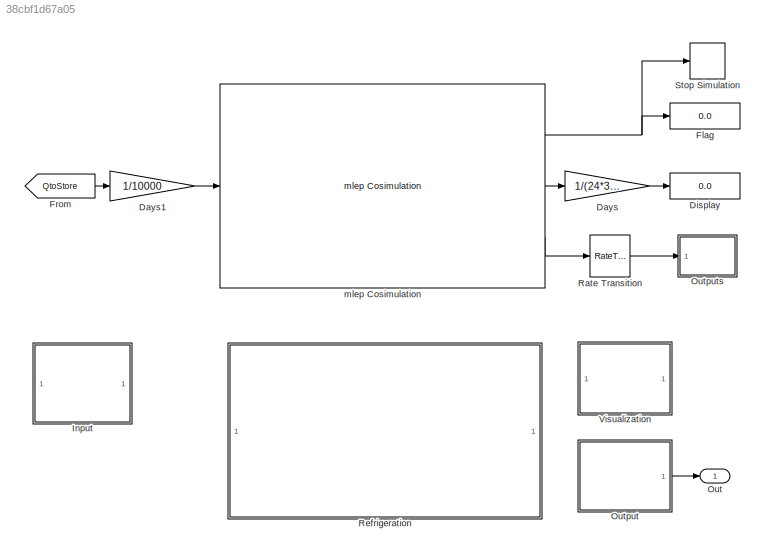
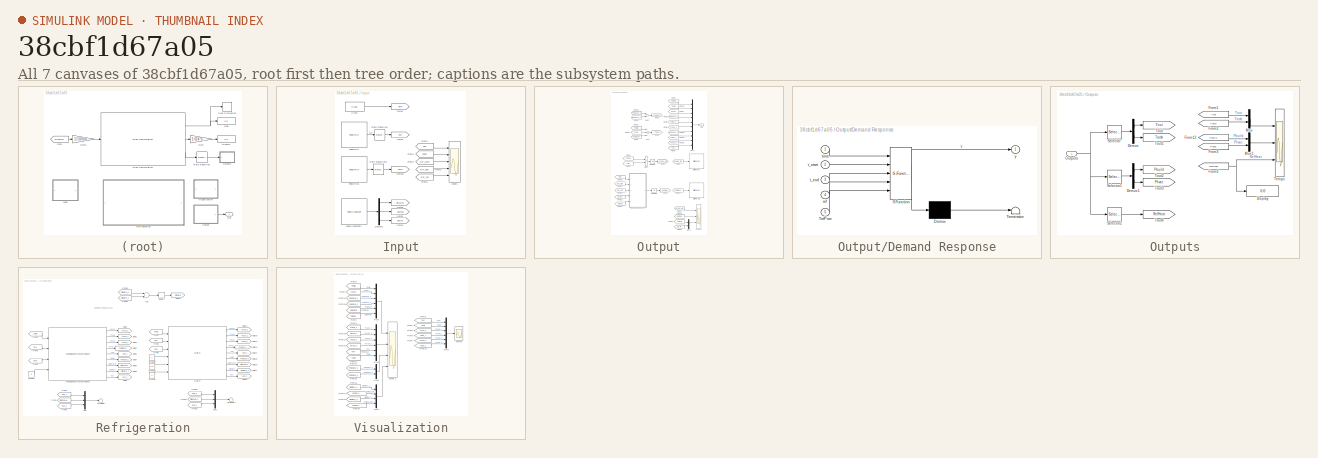
[diagram: thumbnail index - all 7 canvases of the model, root first then tree order]
MODEL slx_38cbf1d67a05
KIND model
CONFIG AbsTol = auto
CONFIG FixedStep = 1
CONFIG MaxStep = auto
CONFIG MinStep = auto
CONFIG RelTol = 1e-3
CONFIG SampleTimeConstraint = Unconstrained
CONFIG Solver = ode3
CONFIG SolverMode = SingleTasking
CONFIG SolverName = ode3
CONFIG StartTime = 0.0
CONFIG StopTime = 24*3600
BLOCK [Gain] Days
  Gain = 1/(24*3600)
  OutDataTypeStr = Inherit: Inherit via internal rule
  ParamDataTypeStr = Inherit: Inherit via internal rule
  SaturateOnIntegerOverflow = off
BLOCK [Gain] Days1
  Gain = 1/10000
  OutDataTypeStr = Inherit: Inherit via internal rule
  ParamDataTypeStr = Inherit: Inherit via internal rule
  SaturateOnIntegerOverflow = off
BLOCK [Display] Display
  Decimation = 1
  Ports = [1]
BLOCK [Display] Flag
  Decimation = 1
  Ports = [1]
BLOCK [From] From
  GotoTag = QtoStore
  TagVisibility = global
BLOCK [SubSystem] Input
  Ports = []
  RequestExecContextInheritance = off
BLOCK [Clock] Input/Clock
  DisplayTime = on
BLOCK [Demux] Input/Demux1
  DisplayOption = bar
  Outputs = 3
  Ports = [1, 3]
BLOCK [Reference] Input/Feed Constant1  REF=refrigeration/Utilities/Feed Constant  (lib defined in slx_e5051c2510bc)
  Ports = [0, 1]
  SourceBlock = refrigeration/Utilities/Feed Constant
  SourceType = Read Constant from File
  filename = 'constant.txt'
  numinput = 3
  timestep = 300
BLOCK [Reference] Input/Feed File  REF=refrigeration/Utilities/Feed File  (lib defined in slx_e5051c2510bc)
  Ports = [0, 1]
  SourceBlock = refrigeration/Utilities/Feed File
  SourceType = Read Input File
  feedstep = 3600
  filename = 'input.txt'
  timestep = 300
BLOCK [Reference] Input/Feed File1  REF=refrigeration/Utilities/Feed File  (lib defined in slx_e5051c2510bc)
  Ports = [0, 1]
  SourceBlock = refrigeration/Utilities/Feed File
  SourceType = Read Input File
  feedstep = 3600
  filename = 'input.txt'
  timestep = 300
BLOCK [From] Input/From1
  GotoTag = Tariff
  TagVisibility = global
BLOCK [From] Input/From2
  GotoTag = DR_end
  TagVisibility = global
BLOCK [From] Input/From3
  GotoTag = Tevl
  TagVisibility = global
BLOCK [From] Input/From4
  GotoTag = DR_start
  TagVisibility = global
BLOCK [From] Input/From6
  GotoTag = DR_ref
  TagVisibility = global
BLOCK [Goto] Input/Goto1
  GotoTag = Time
  TagVisibility = global
BLOCK [Goto] Input/Goto10
  GotoTag = Tariff
  TagVisibility = global
BLOCK [Goto] Input/Goto2
  GotoTag = DR_end
  TagVisibility = global
BLOCK [Goto] Input/Goto3
  GotoTag = DR_start
  TagVisibility = global
BLOCK [Goto] Input/Goto4
  GotoTag = DR_ref
  TagVisibility = global
BLOCK [Goto] Input/Goto5
  GotoTag = Tevl
  TagVisibility = global
BLOCK [Scope] Input/Inputs
  DataFormat = StructureWithTime
  Floating = off
  LimitDataPoints = off
  NumInputPorts = 5
  Ports = [5]
  SampleInput = on
  SampleTime = 0
  SaveName = ScopeData3
  ShowLegends = on
  TimeRange = 90000
  YMax = 25~0.1~16~16~400001
  YMin = 0~0.02~14~14~399999
BLOCK [RateTransition] Input/Rate Transition
BLOCK [RateTransition] Input/Rate Transition1
BLOCK [Outport] Out
  IconDisplay = Port number
  InitialOutput = 0
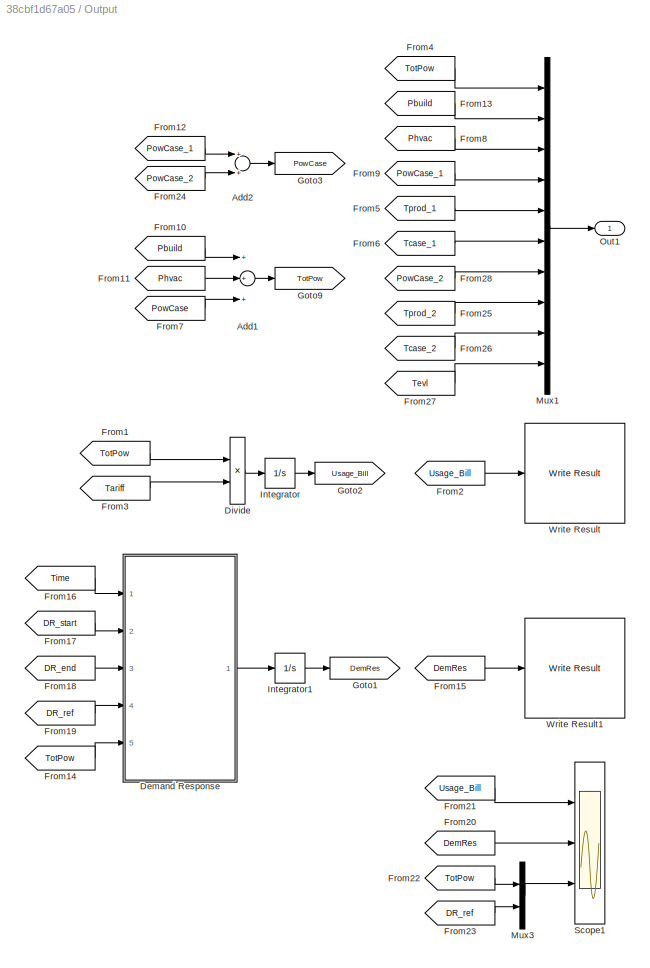
BLOCK [SubSystem] Output
  Ports = [0, 1]
  RequestExecContextInheritance = off
BLOCK [Sum] Output/Add1
  InputSameDT = off
  Inputs = +++
  OutDataTypeStr = Inherit: Inherit via internal rule
  Ports = [3, 1]
  SaturateOnIntegerOverflow = off
BLOCK [Sum] Output/Add2
  InputSameDT = off
  OutDataTypeStr = Inherit: Inherit via internal rule
  Ports = [2, 1]
  SaturateOnIntegerOverflow = off
BLOCK [SubSystem] Output/Demand Response
  ErrorFcn = Stateflow.Translate.translate
  PermitHierarchicalResolution = ExplicitOnly
  Ports = [5, 1]
  RequestExecContextInheritance = off
  SFBlockType = MATLAB Function
  TreatAsAtomicUnit = on
BLOCK [Demux] Output/Demand Response/ Demux 
  Outputs = 1
  Ports = [1, 1]
BLOCK [S-Function] Output/Demand Response/ SFunction 
  EnableBusSupport = on
  FunctionName = sf_sfun
  PortCounts = [5 2]
  Ports = [5, 2]
  Tag = Stateflow S-Function retail_store 1
BLOCK [Terminator] Output/Demand Response/ Terminator 
BLOCK [Inport] Output/Demand Response/TotPow
  IconDisplay = Port number
  Port = 5
BLOCK [Inport] Output/Demand Response/ref
  IconDisplay = Port number
  Port = 4
BLOCK [Inport] Output/Demand Response/t_end
  IconDisplay = Port number
  Port = 3
BLOCK [Inport] Output/Demand Response/t_start
  IconDisplay = Port number
  Port = 2
BLOCK [Inport] Output/Demand Response/time
  IconDisplay = Port number
BLOCK [Outport] Output/Demand Response/y
  IconDisplay = Port number
BLOCK [Product] Output/Divide
  InputSameDT = off
  Inputs = **
  OutDataTypeStr = Inherit: Inherit via internal rule
  Ports = [2, 1]
  RndMeth = Floor
  SaturateOnIntegerOverflow = off
BLOCK [From] Output/From1
  GotoTag = TotPow
  TagVisibility = global
BLOCK [From] Output/From10
  GotoTag = Pbuild
  TagVisibility = global
BLOCK [From] Output/From11
  GotoTag = Phvac
  TagVisibility = global
BLOCK [From] Output/From12
  GotoTag = PowCase_1
  TagVisibility = global
BLOCK [From] Output/From13
  GotoTag = Pbuild
  TagVisibility = global
BLOCK [From] Output/From14
  GotoTag = TotPow
  TagVisibility = global
BLOCK [From] Output/From15
  GotoTag = DemRes
  TagVisibility = global
BLOCK [From] Output/From16
  GotoTag = Time
  TagVisibility = global
BLOCK [From] Output/From17
  GotoTag = DR_start
  TagVisibility = global
BLOCK [From] Output/From18
  GotoTag = DR_end
  TagVisibility = global
BLOCK [From] Output/From19
  GotoTag = DR_ref
  TagVisibility = global
BLOCK [From] Output/From2
  GotoTag = Usage_Bill
  TagVisibility = global
BLOCK [From] Output/From20
  GotoTag = DemRes
  TagVisibility = global
BLOCK [From] Output/From21
  GotoTag = Usage_Bill
  TagVisibility = global
BLOCK [From] Output/From22
  GotoTag = TotPow
  TagVisibility = global
BLOCK [From] Output/From23
  GotoTag = DR_ref
  TagVisibility = global
BLOCK [From] Output/From24
  GotoTag = PowCase_2
  TagVisibility = global
BLOCK [From] Output/From25
  GotoTag = Tprod_2
  TagVisibility = global
BLOCK [From] Output/From26
  GotoTag = Tcase_2
  TagVisibility = global
BLOCK [From] Output/From27
  GotoTag = Tevl
  TagVisibility = global
BLOCK [From] Output/From28
  GotoTag = PowCase_2
  TagVisibility = global
BLOCK [From] Output/From3
  GotoTag = Tariff
  TagVisibility = global
BLOCK [From] Output/From4
  GotoTag = TotPow
  TagVisibility = global
BLOCK [From] Output/From5
  GotoTag = Tprod_1
  TagVisibility = global
BLOCK [From] Output/From6
  GotoTag = Tcase_1
  TagVisibility = global
BLOCK [From] Output/From7
  GotoTag = PowCase
  TagVisibility = global
BLOCK [From] Output/From8
  GotoTag = Phvac
  TagVisibility = global
BLOCK [From] Output/From9
  GotoTag = PowCase_1
  TagVisibility = global
BLOCK [Goto] Output/Goto1
  GotoTag = DemRes
  TagVisibility = global
BLOCK [Goto] Output/Goto2
  GotoTag = Usage_Bill
  TagVisibility = global
BLOCK [Goto] Output/Goto3
  GotoTag = PowCase
  TagVisibility = global
BLOCK [Goto] Output/Goto9
  GotoTag = TotPow
  TagVisibility = global
BLOCK [Integrator] Output/Integrator
  LowerSaturationLimit = -10^7
  Ports = [1, 1]
  UpperSaturationLimit = 10^7
BLOCK [Integrator] Output/Integrator1
  LowerSaturationLimit = -10^7
  Ports = [1, 1]
  UpperSaturationLimit = 10^7
BLOCK [Mux] Output/Mux1
  DisplayOption = bar
  Inputs = 10
  Ports = [10, 1]
BLOCK [Mux] Output/Mux3
  DisplayOption = bar
  Inputs = 2
  Ports = [2, 1]
BLOCK [Outport] Output/Out1
  IconDisplay = Port number
  InitialOutput = 0
BLOCK [Scope] Output/Scope1
  Floating = off
  LegendLocations = 0.8354     0.92555     0.11799     0.02451\n0.8354     0.61428     0.11799     0.02451\n0.8354     0.28385     0.11799    0.043658
  LimitDataPoints = off
  NumInputPorts = 3
  Ports = [3]
  SaveName = ScopeData5
  ShowLegends = on
  TimeRange = 90000
  YMax = 1200000000~1200000000~500000
  YMin = -200000000~0~-100000
BLOCK [Reference] Output/Write Result  REF=refrigeration/Utilities/Write Result  (lib defined in slx_e5051c2510bc)
  Ports = [1]
  SourceBlock = refrigeration/Utilities/Write Result
  SourceType = Write Result File
  filename = 'result1.txt'
  timestep = 3600
BLOCK [Reference] Output/Write Result1  REF=refrigeration/Utilities/Write Result  (lib defined in slx_e5051c2510bc)
  Ports = [1]
  SourceBlock = refrigeration/Utilities/Write Result
  SourceType = Write Result File
  filename = 'result2.txt'
  timestep = 3600
BLOCK [SubSystem] Outputs
  Ports = [1]
  RequestExecContextInheritance = off
BLOCK [Demux] Outputs/Demux
  DisplayOption = bar
  Outputs = 2
  Ports = [1, 2]
BLOCK [Demux] Outputs/Demux1
  DisplayOption = bar
  Outputs = 2
  Ports = [1, 2]
BLOCK [Display] Outputs/Display
  Decimation = 1
  Ports = [1]
BLOCK [From] Outputs/From1
  GotoTag = Tout
  TagVisibility = global
BLOCK [From] Outputs/From12
  GotoTag = Pbuild
  TagVisibility = global
BLOCK [From] Outputs/From2
  GotoTag = Tamb
  TagVisibility = global
BLOCK [From] Outputs/From3
  GotoTag = Phvac
  TagVisibility = global
BLOCK [From] Outputs/From4
  GotoTag = RefHeat
  TagVisibility = global
BLOCK [Mux] Outputs/Mux
  DisplayOption = bar
  Inputs = 2
  Ports = [2, 1]
BLOCK [Mux] Outputs/Mux1
  DisplayOption = bar
  Inputs = 2
  Ports = [2, 1]
BLOCK [Inport] Outputs/Outputs
  IconDisplay = Port number
BLOCK [Selector] Outputs/Selector
  Indices = [1:2]
  InputPortWidth = 5
  Ports = [1, 1]
BLOCK [Selector] Outputs/Selector1
  Indices = [3:4]
  InputPortWidth = 5
  Ports = [1, 1]
BLOCK [Selector] Outputs/Selector2
  Indices = [5]
  InputPortWidth = 5
  Ports = [1, 1]
BLOCK [Scope] Outputs/Temps
  DataFormat = StructureWithTime
  Floating = off
  LimitDataPoints = off
  NumInputPorts = 3
  Ports = [3]
  SampleTime = 0
  ShowLegends = on
  TimeRange = 86400
  YMax = 32.5~375000~0
  YMin = 0~0~-8000
  ZoomMode = xonly
BLOCK [Goto] Outputs/Tout
  GotoTag = Tout
  TagVisibility = global
BLOCK [Goto] Outputs/Tout1
  GotoTag = Tamb
  TagVisibility = global
BLOCK [Goto] Outputs/Tout2
  GotoTag = Pbuild
  TagVisibility = global
BLOCK [Goto] Outputs/Tout3
  GotoTag = Phvac
  TagVisibility = global
BLOCK [Goto] Outputs/Tout4
  GotoTag = RefHeat
  TagVisibility = global
BLOCK [RateTransition] Rate Transition
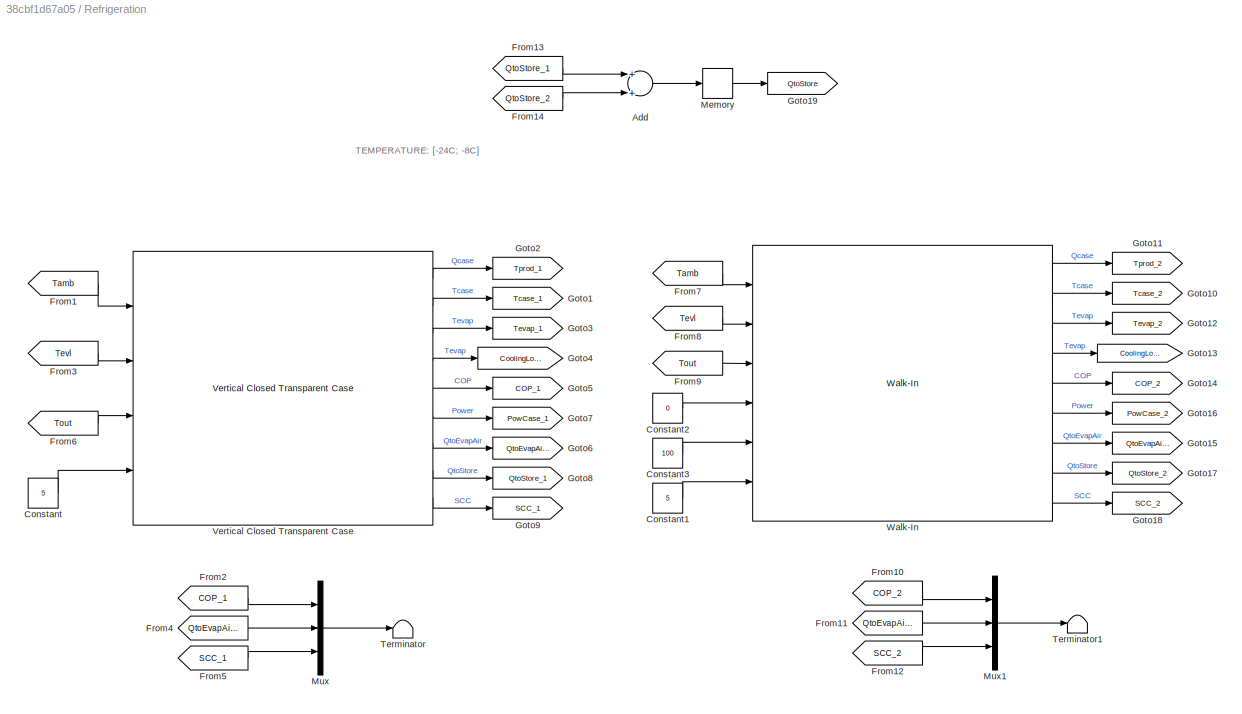
BLOCK [SubSystem] Refrigeration
  Ports = []
  RequestExecContextInheritance = off
BLOCK [Sum] Refrigeration/Add
  InputSameDT = off
  OutDataTypeStr = Inherit: Inherit via internal rule
  Ports = [2, 1]
  SaturateOnIntegerOverflow = off
BLOCK [Constant] Refrigeration/Constant
  Value = 5
BLOCK [Constant] Refrigeration/Constant1
  Value = 5
BLOCK [Constant] Refrigeration/Constant2
  Value = 0
BLOCK [Constant] Refrigeration/Constant3
  Value = 100
BLOCK [From] Refrigeration/From1
  GotoTag = Tamb
  TagVisibility = global
BLOCK [From] Refrigeration/From10
  GotoTag = COP_2
  TagVisibility = global
BLOCK [From] Refrigeration/From11
  GotoTag = QtoEvapAir_2
  TagVisibility = global
BLOCK [From] Refrigeration/From12
  GotoTag = SCC_2
  TagVisibility = global
BLOCK [From] Refrigeration/From13
  GotoTag = QtoStore_1
  TagVisibility = global
BLOCK [From] Refrigeration/From14
  GotoTag = QtoStore_2
  TagVisibility = global
BLOCK [From] Refrigeration/From2
  GotoTag = COP_1
  TagVisibility = global
BLOCK [From] Refrigeration/From3
  GotoTag = Tevl
  TagVisibility = global
BLOCK [From] Refrigeration/From4
  GotoTag = QtoEvapAir_1
  TagVisibility = global
BLOCK [From] Refrigeration/From5
  GotoTag = SCC_1
  TagVisibility = global
BLOCK [From] Refrigeration/From6
  GotoTag = Tout
  TagVisibility = global
BLOCK [From] Refrigeration/From7
  GotoTag = Tamb
  TagVisibility = global
BLOCK [From] Refrigeration/From8
  GotoTag = Tevl
  TagVisibility = global
BLOCK [From] Refrigeration/From9
  GotoTag = Tout
  TagVisibility = global
BLOCK [Goto] Refrigeration/Goto1
  GotoTag = Tcase_1
  TagVisibility = global
BLOCK [Goto] Refrigeration/Goto10
  GotoTag = Tcase_2
  TagVisibility = global
BLOCK [Goto] Refrigeration/Goto11
  GotoTag = Tprod_2
  TagVisibility = global
BLOCK [Goto] Refrigeration/Goto12
  GotoTag = Tevap_2
  TagVisibility = global
BLOCK [Goto] Refrigeration/Goto13
  GotoTag = CoolingLoad_2
  TagVisibility = global
BLOCK [Goto] Refrigeration/Goto14
  GotoTag = COP_2
  TagVisibility = global
BLOCK [Goto] Refrigeration/Goto15
  GotoTag = QtoEvapAir_2
  TagVisibility = global
BLOCK [Goto] Refrigeration/Goto16
  GotoTag = PowCase_2
  TagVisibility = global
BLOCK [Goto] Refrigeration/Goto17
  GotoTag = QtoStore_2
  TagVisibility = global
BLOCK [Goto] Refrigeration/Goto18
  GotoTag = SCC_2
  TagVisibility = global
BLOCK [Goto] Refrigeration/Goto19
  GotoTag = QtoStore
  TagVisibility = global
BLOCK [Goto] Refrigeration/Goto2
  GotoTag = Tprod_1
  TagVisibility = global
BLOCK [Goto] Refrigeration/Goto3
  GotoTag = Tevap_1
  TagVisibility = global
BLOCK [Goto] Refrigeration/Goto4
  GotoTag = CoolingLoad_1
  TagVisibility = global
BLOCK [Goto] Refrigeration/Goto5
  GotoTag = COP_1
  TagVisibility = global
BLOCK [Goto] Refrigeration/Goto6
  GotoTag = QtoEvapAir_1
  TagVisibility = global
BLOCK [Goto] Refrigeration/Goto7
  GotoTag = PowCase_1
  TagVisibility = global
BLOCK [Goto] Refrigeration/Goto8
  GotoTag = QtoStore_1
  TagVisibility = global
BLOCK [Goto] Refrigeration/Goto9
  GotoTag = SCC_1
  TagVisibility = global
BLOCK [Memory] Refrigeration/Memory
  X0 = 10000
BLOCK [Mux] Refrigeration/Mux
  DisplayOption = bar
  Inputs = 3
  Ports = [3, 1]
BLOCK [Mux] Refrigeration/Mux1
  DisplayOption = bar
  Inputs = 3
  Ports = [3, 1]
BLOCK [Terminator] Refrigeration/Terminator
BLOCK [Terminator] Refrigeration/Terminator1
BLOCK [Reference] Refrigeration/Vertical Closed Transparent Case  REF=refrigeration/Refrigeration/Vertical Closed Transparent Case  (lib defined in slx_e5051c2510bc)
  Alpha = 3.8101e-2
  Beta = 1.0376e-2
  Ccase = 9.4247e5
  Cevap = 150000
  Cprod = 9.6310e4
  Gamma = 1.2792e-2
  LHR = 0.1011
  Ports = [4, 9]
  Qinternal = 1484
  RatedLoad = 4255
  Rcase = 7.7559e-2
  SourceBlock = refrigeration/Refrigeration/Vertical Closed Transparent Case
  SourceType = Vertical Closed Transparent Case
  Tcase_0 = -12
  Tevap_0 = -12
  Tprod_0 = -12
  p_value = 500
BLOCK [Reference] Refrigeration/Walk-In  REF=refrigeration/Refrigeration/Walk-In  (lib defined in slx_e5051c2510bc)
  Alpha = 3.3139e-2
  Ccase = 9.9033e5
  Cevap = 400000
  Cprod = 9.6353e4
  LHR = 0
  Ports = [6, 9]
  Qfan = 329
  Qlights = 62
  RatedLoad = 4255
  Rcase = 9.6362e-2
  SourceBlock = refrigeration/Refrigeration/Walk-In
  SourceType = Refrigeration Walk-In
  Tcase_0 = -12
  Tevap_0 = -12
  Tprod_0 = -12
  p_value = 400
BLOCK [Stop] Stop Simulation
BLOCK [SubSystem] Visualization
  Ports = []
  RequestExecContextInheritance = off
BLOCK [From] Visualization/From1
  GotoTag = Tevap_1
  TagVisibility = global
BLOCK [From] Visualization/From10
  GotoTag = Tprod_1
  TagVisibility = global
BLOCK [From] Visualization/From11
  GotoTag = PowCase_1
  TagVisibility = global
BLOCK [From] Visualization/From12
  GotoTag = Tevl
  TagVisibility = global
BLOCK [From] Visualization/From13
  GotoTag = Tamb
  TagVisibility = global
BLOCK [From] Visualization/From14
  GotoTag = PowCase_1
  TagVisibility = global
BLOCK [From] Visualization/From15
  GotoTag = PowCase
  TagVisibility = global
BLOCK [From] Visualization/From16
  GotoTag = QtoStore_1
  TagVisibility = global
BLOCK [From] Visualization/From17
  GotoTag = CoolingLoad_1
  TagVisibility = global
BLOCK [From] Visualization/From18
  GotoTag = Tprod_2
  TagVisibility = global
BLOCK [From] Visualization/From19
  GotoTag = PowCase_2
  TagVisibility = global
BLOCK [From] Visualization/From2
  GotoTag = Phvac
  TagVisibility = global
BLOCK [From] Visualization/From20
  GotoTag = Tprod_2
  TagVisibility = global
BLOCK [From] Visualization/From21
  GotoTag = Tcase_2
  TagVisibility = global
BLOCK [From] Visualization/From22
  GotoTag = PowCase_2
  TagVisibility = global
BLOCK [From] Visualization/From23
  GotoTag = QtoStore_2
  TagVisibility = global
BLOCK [From] Visualization/From24
  GotoTag = CoolingLoad_2
  TagVisibility = global
BLOCK [From] Visualization/From3
  GotoTag = Tout
  TagVisibility = global
BLOCK [From] Visualization/From4
  GotoTag = Tamb
  TagVisibility = global
BLOCK [From] Visualization/From5
  GotoTag = TotPow
  TagVisibility = global
BLOCK [From] Visualization/From6
  GotoTag = Tprod_1
  TagVisibility = global
BLOCK [From] Visualization/From7
  GotoTag = Tevap_2
  TagVisibility = global
BLOCK [From] Visualization/From8
  GotoTag = Pbuild
  TagVisibility = global
BLOCK [From] Visualization/From9
  GotoTag = Tcase_1
  TagVisibility = global
BLOCK [Mux] Visualization/Mux1
  DisplayOption = bar
  Inputs = 6
  Ports = [6, 1]
BLOCK [Mux] Visualization/Mux2
  DisplayOption = bar
  Inputs = 6
  Ports = [6, 1]
BLOCK [Mux] Visualization/Mux3
  DisplayOption = bar
  Inputs = 6
  Ports = [6, 1]
BLOCK [Mux] Visualization/Mux4
  DisplayOption = bar
  Ports = [4, 1]
BLOCK [Mux] Visualization/Mux5
  DisplayOption = bar
  Inputs = 2
  Ports = [2, 1]
BLOCK [Scope] Visualization/Scope 1
  DataFormat = StructureWithTime
  Floating = off
  LegendLocations = 0.79628     0.84933     0.15711     0.11996\n0.82757     0.59673     0.12581     0.11996\n0.81193     0.43964     0.14146    0.043551\n0.78064     0.16794     0.17275    0.081754
  LimitDataPoints = off
  NumInputPorts = 4
  Ports = [4]
  SampleTime = 0
  SaveName = ScopeData4
  ShowLegends = on
  TimeRange = 90000
  YMax = 100000~30~14000~30000
  YMin = 0~-30~6000~-10000
BLOCK [Scope] Visualization/Temps
  DataFormat = StructureWithTime
  Floating = off
  LimitDataPoints = off
  NumInputPorts = 1
  Ports = [1]
  SampleTime = 0
  SaveName = ScopeData1
  ShowLegends = on
  TimeRange = 90000
  YMax = 35
  YMin = 0
BLOCK [Reference] mlep Cosimulation  REF=refrigeration/mlep Cosimulation  (lib defined in slx_e5051c2510bc)
  Ports = [1, 3]
  SourceBlock = refrigeration/mlep Cosimulation
  SourceType = S-function: mlepCosim
  bcvtbpath = '<userpath>/mlep/bcvtb'
  idf = 'retail_810_cosim'
  numinput = 1
  numoutput = 5
  progname = 'runenergyplus'
  step = 300
  timeout = 10000
  weather = 'USA_IL_Chicago-OHare.Intl.AP.725300_TMY3'
ANNOTATION Refrigeration: TEMPERATURE: [-24C; -8C]
LINE Days1:1 -> mlep Cosimulation:1
LINE Days:1 -> Display:1
LINE From:1 -> Days1:1
LINE Input/Clock:1 -> Input/Goto1:1
LINE Input/Demux1:1 -> Input/Goto3:1
LINE Input/Demux1:2 -> Input/Goto2:1
LINE Input/Demux1:3 -> Input/Goto4:1
LINE Input/Feed Constant1:1 -> Input/Demux1:1
LINE Input/Feed File1:1 -> Input/Rate Transition1:1
LINE Input/Feed File:1 -> Input/Rate Transition:1
LINE Input/From1:1 -> Input/Inputs:2
LINE Input/From2:1 -> Input/Inputs:4
LINE Input/From3:1 -> Input/Inputs:1
LINE Input/From4:1 -> Input/Inputs:3
LINE Input/From6:1 -> Input/Inputs:5
LINE Input/Rate Transition1:1 -> Input/Goto10:1
LINE Input/Rate Transition:1 -> Input/Goto5:1
LINE Output/Add1:1 -> Output/Goto9:1
LINE Output/Add2:1 -> Output/Goto3:1
LINE Output/Demand Response:1 -> Output/Integrator1:1
LINE Output/Divide:1 -> Output/Integrator:1
LINE Output/From10:1 -> Output/Add1:1
LINE Output/From11:1 -> Output/Add1:2
LINE Output/From12:1 -> Output/Add2:1
LINE Output/From13:1 -> Output/Mux1:2
LINE Output/From14:1 -> Output/Demand Response:5
LINE Output/From15:1 -> Output/Write Result1:1
LINE Output/From16:1 -> Output/Demand Response:1
LINE Output/From17:1 -> Output/Demand Response:2
LINE Output/From18:1 -> Output/Demand Response:3
LINE Output/From19:1 -> Output/Demand Response:4
LINE Output/From1:1 -> Output/Divide:1
LINE Output/From20:1 -> Output/Scope1:2
LINE Output/From21:1 -> Output/Scope1:1
LINE Output/From22:1 -> Output/Mux3:1
LINE Output/From23:1 -> Output/Mux3:2
LINE Output/From24:1 -> Output/Add2:2
LINE Output/From25:1 -> Output/Mux1:8
LINE Output/From26:1 -> Output/Mux1:9
LINE Output/From27:1 -> Output/Mux1:10
LINE Output/From28:1 -> Output/Mux1:7
LINE Output/From2:1 -> Output/Write Result:1
LINE Output/From3:1 -> Output/Divide:2
LINE Output/From4:1 -> Output/Mux1:1
LINE Output/From5:1 -> Output/Mux1:5
LINE Output/From6:1 -> Output/Mux1:6
LINE Output/From7:1 -> Output/Add1:3
LINE Output/From8:1 -> Output/Mux1:3
LINE Output/From9:1 -> Output/Mux1:4
LINE Output/Integrator1:1 -> Output/Goto1:1
LINE Output/Integrator:1 -> Output/Goto2:1
LINE Output/Mux1:1 -> Output/Out1:1
LINE Output/Mux3:1 -> Output/Scope1:3
LINE Output:1 -> Out:1
LINE Outputs/Demux1:1 -> Outputs/Tout2:1
LINE Outputs/Demux1:2 -> Outputs/Tout3:1
LINE Outputs/Demux:1 -> Outputs/Tout:1
LINE Outputs/Demux:2 -> Outputs/Tout1:1
LINE Outputs/From12:1 -> Outputs/Mux1:1
LINE Outputs/From1:1 -> Outputs/Mux:1
LINE Outputs/From2:1 -> Outputs/Mux:2
LINE Outputs/From3:1 -> Outputs/Mux1:2
NET Outputs/From4:1 -> Outputs/Display:1, Outputs/Temps:3
LINE Outputs/Mux1:1 -> Outputs/Temps:2
LINE Outputs/Mux:1 -> Outputs/Temps:1
NET Outputs/Outputs:1 -> Outputs/Selector1:1, Outputs/Selector2:1, Outputs/Selector:1
LINE Outputs/Selector1:1 -> Outputs/Demux1:1
LINE Outputs/Selector2:1 -> Outputs/Tout4:1
LINE Outputs/Selector:1 -> Outputs/Demux:1
LINE Rate Transition:1 -> Outputs:1
LINE Refrigeration/Add:1 -> Refrigeration/Memory:1
LINE Refrigeration/Constant1:1 -> Refrigeration/Walk-In:6
LINE Refrigeration/Constant2:1 -> Refrigeration/Walk-In:4
LINE Refrigeration/Constant3:1 -> Refrigeration/Walk-In:5
LINE Refrigeration/Constant:1 -> Refrigeration/Vertical Closed Transparent Case:4
LINE Refrigeration/From10:1 -> Refrigeration/Mux1:1
LINE Refrigeration/From11:1 -> Refrigeration/Mux1:2
LINE Refrigeration/From12:1 -> Refrigeration/Mux1:3
LINE Refrigeration/From13:1 -> Refrigeration/Add:1
LINE Refrigeration/From14:1 -> Refrigeration/Add:2
LINE Refrigeration/From1:1 -> Refrigeration/Vertical Closed Transparent Case:1
LINE Refrigeration/From2:1 -> Refrigeration/Mux:1
LINE Refrigeration/From3:1 -> Refrigeration/Vertical Closed Transparent Case:2
LINE Refrigeration/From4:1 -> Refrigeration/Mux:2
LINE Refrigeration/From5:1 -> Refrigeration/Mux:3
LINE Refrigeration/From6:1 -> Refrigeration/Vertical Closed Transparent Case:3
LINE Refrigeration/From7:1 -> Refrigeration/Walk-In:1
LINE Refrigeration/From8:1 -> Refrigeration/Walk-In:2
LINE Refrigeration/From9:1 -> Refrigeration/Walk-In:3
LINE Refrigeration/Memory:1 -> Refrigeration/Goto19:1
LINE Refrigeration/Mux1:1 -> Refrigeration/Terminator1:1
LINE Refrigeration/Mux:1 -> Refrigeration/Terminator:1
LINE Refrigeration/Vertical Closed Transparent Case:1 -> Refrigeration/Goto2:1
LINE Refrigeration/Vertical Closed Transparent Case:2 -> Refrigeration/Goto1:1
LINE Refrigeration/Vertical Closed Transparent Case:3 -> Refrigeration/Goto3:1
LINE Refrigeration/Vertical Closed Transparent Case:4 -> Refrigeration/Goto4:1
LINE Refrigeration/Vertical Closed Transparent Case:5 -> Refrigeration/Goto5:1
LINE Refrigeration/Vertical Closed Transparent Case:6 -> Refrigeration/Goto7:1
LINE Refrigeration/Vertical Closed Transparent Case:7 -> Refrigeration/Goto6:1
LINE Refrigeration/Vertical Closed Transparent Case:8 -> Refrigeration/Goto8:1
LINE Refrigeration/Vertical Closed Transparent Case:9 -> Refrigeration/Goto9:1
LINE Refrigeration/Walk-In:1 -> Refrigeration/Goto11:1
LINE Refrigeration/Walk-In:2 -> Refrigeration/Goto10:1
LINE Refrigeration/Walk-In:3 -> Refrigeration/Goto12:1
LINE Refrigeration/Walk-In:4 -> Refrigeration/Goto13:1
LINE Refrigeration/Walk-In:5 -> Refrigeration/Goto14:1
LINE Refrigeration/Walk-In:6 -> Refrigeration/Goto16:1
LINE Refrigeration/Walk-In:7 -> Refrigeration/Goto15:1
LINE Refrigeration/Walk-In:8 -> Refrigeration/Goto17:1
LINE Refrigeration/Walk-In:9 -> Refrigeration/Goto18:1
LINE Visualization/From10:1 -> Visualization/Mux3:2
LINE Visualization/From11:1 -> Visualization/Mux5:1
LINE Visualization/From12:1 -> Visualization/Mux3:5
LINE Visualization/From13:1 -> Visualization/Mux3:6
LINE Visualization/From14:1 -> Visualization/Mux2:3
LINE Visualization/From15:1 -> Visualization/Mux2:5
LINE Visualization/From16:1 -> Visualization/Mux4:1
LINE Visualization/From17:1 -> Visualization/Mux4:2
LINE Visualization/From18:1 -> Visualization/Mux1:6
LINE Visualization/From19:1 -> Visualization/Mux2:4
LINE Visualization/From1:1 -> Visualization/Mux1:3
LINE Visualization/From20:1 -> Visualization/Mux3:4
LINE Visualization/From21:1 -> Visualization/Mux3:3
LINE Visualization/From22:1 -> Visualization/Mux5:2
LINE Visualization/From23:1 -> Visualization/Mux4:3
LINE Visualization/From24:1 -> Visualization/Mux4:4
LINE Visualization/From2:1 -> Visualization/Mux2:2
LINE Visualization/From3:1 -> Visualization/Mux1:1
LINE Visualization/From4:1 -> Visualization/Mux1:2
LINE Visualization/From5:1 -> Visualization/Mux2:6
LINE Visualization/From6:1 -> Visualization/Mux1:4
LINE Visualization/From7:1 -> Visualization/Mux1:5
LINE Visualization/From8:1 -> Visualization/Mux2:1
LINE Visualization/From9:1 -> Visualization/Mux3:1
LINE Visualization/Mux1:1 -> Visualization/Temps:1
LINE Visualization/Mux2:1 -> Visualization/Scope 1:1
LINE Visualization/Mux3:1 -> Visualization/Scope 1:2
LINE Visualization/Mux4:1 -> Visualization/Scope 1:4
LINE Visualization/Mux5:1 -> Visualization/Scope 1:3
NET mlep Cosimulation:1 -> Flag:1, Stop Simulation:1
LINE mlep Cosimulation:2 -> Days:1
LINE mlep Cosimulation:3 -> Rate Transition:1
note: NET lines group one-source signal fan-out (src -> all destinations, sorted); 1:1 wires keep LINE
CHART Output/MATLAB Function states=1 transitions=1
  STATE_LABEL 'eML_blk_kernel()'
  STATE_LABEL 'SCRIPT:\nfunction y = fcn(time,t_start,t_end,ref,TotPow)\n%#codegen\n\n\nif (time > t_start*3600 && time < t_end*3600)\n    y = TotPow - ref;\nelse\n    y = 0;\nend\n'
